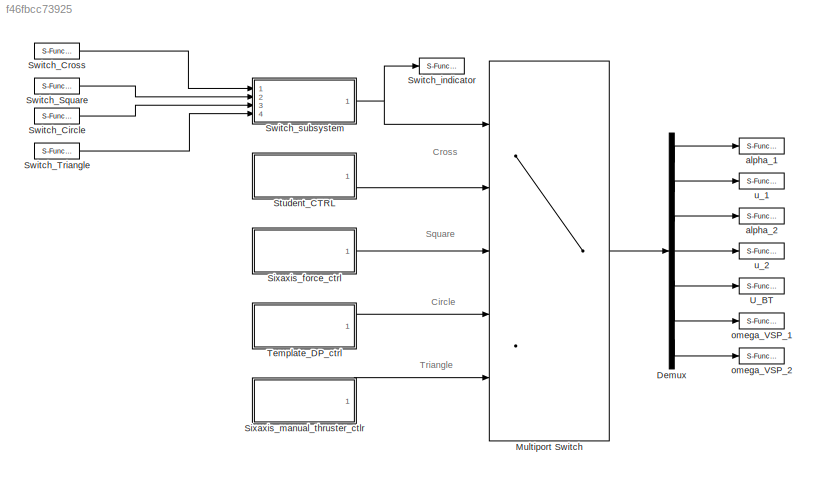
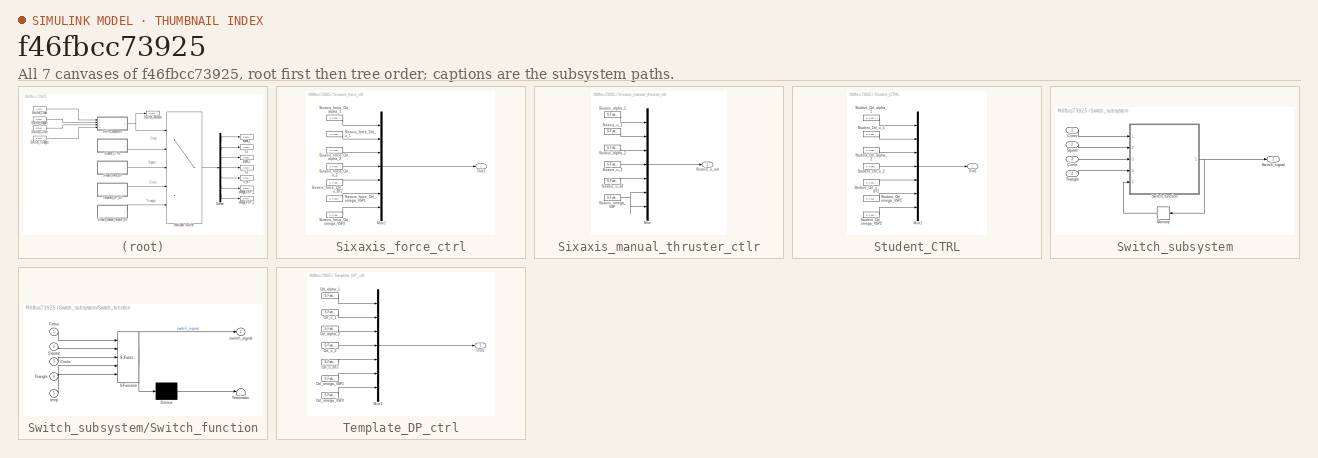
[diagram: thumbnail index - all 7 canvases of the model, root first then tree order]
MODEL slx_f46fbcc73925
KIND model
BLOCK [Demux] Demux
  DisplayOption = bar
  Outputs = 7
  Ports = [1, 7]
BLOCK [MultiPortSwitch] Multiport Switch
  InputSameDT = off
  Inputs = 4
  Ports = [5, 1]
  SaturateOnIntegerOverflow = off
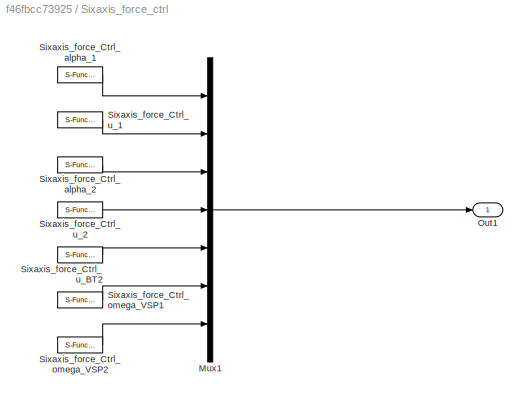
BLOCK [SubSystem] Sixaxis_force_ctrl
  Ports = [0, 1]
  RequestExecContextInheritance = off
BLOCK [Mux] Sixaxis_force_ctrl/Mux1
  DisplayOption = bar
  Inputs = 7
  Ports = [7, 1]
BLOCK [Outport] Sixaxis_force_ctrl/Out1
  IconDisplay = Port number
BLOCK [S-Function] Sixaxis_force_ctrl/Sixaxis_force_Ctrl_alpha_1
  CopyFcn = NIVeriStand_MDL_functions('', 'IO_copy');
  DeleteFcn = NIVeriStand_MDL_functions('', 'IO_delete');
  EnableBusSupport = off
  FunctionName = NIVeriStandIO
  MoveFcn = set_param(gcb, 'Mask', 'on');
  Parameters = width dtype portnum stime stype btype
  Ports = [0, 1]
  Priority = 1
BLOCK [S-Function] Sixaxis_force_ctrl/Sixaxis_force_Ctrl_alpha_2
  CopyFcn = NIVeriStand_MDL_functions('', 'IO_copy');
  DeleteFcn = NIVeriStand_MDL_functions('', 'IO_delete');
  EnableBusSupport = off
  FunctionName = NIVeriStandIO
  MoveFcn = set_param(gcb, 'Mask', 'on');
  Parameters = width dtype portnum stime stype btype
  Ports = [0, 1]
  Priority = 2
BLOCK [S-Function] Sixaxis_force_ctrl/Sixaxis_force_Ctrl_omega_VSP1
  CopyFcn = NIVeriStand_MDL_functions('', 'IO_copy');
  DeleteFcn = NIVeriStand_MDL_functions('', 'IO_delete');
  EnableBusSupport = off
  FunctionName = NIVeriStandIO
  MoveFcn = set_param(gcb, 'Mask', 'on');
  Parameters = width dtype portnum stime stype btype
  Ports = [0, 1]
  Priority = 3
BLOCK [S-Function] Sixaxis_force_ctrl/Sixaxis_force_Ctrl_omega_VSP2
  CopyFcn = NIVeriStand_MDL_functions('', 'IO_copy');
  DeleteFcn = NIVeriStand_MDL_functions('', 'IO_delete');
  EnableBusSupport = off
  FunctionName = NIVeriStandIO
  MoveFcn = set_param(gcb, 'Mask', 'on');
  Parameters = width dtype portnum stime stype btype
  Ports = [0, 1]
  Priority = 4
BLOCK [S-Function] Sixaxis_force_ctrl/Sixaxis_force_Ctrl_u_1
  CopyFcn = NIVeriStand_MDL_functions('', 'IO_copy');
  DeleteFcn = NIVeriStand_MDL_functions('', 'IO_delete');
  EnableBusSupport = off
  FunctionName = NIVeriStandIO
  MoveFcn = set_param(gcb, 'Mask', 'on');
  Parameters = width dtype portnum stime stype btype
  Ports = [0, 1]
  Priority = 5
BLOCK [S-Function] Sixaxis_force_ctrl/Sixaxis_force_Ctrl_u_2
  CopyFcn = NIVeriStand_MDL_functions('', 'IO_copy');
  DeleteFcn = NIVeriStand_MDL_functions('', 'IO_delete');
  EnableBusSupport = off
  FunctionName = NIVeriStandIO
  MoveFcn = set_param(gcb, 'Mask', 'on');
  Parameters = width dtype portnum stime stype btype
  Ports = [0, 1]
  Priority = 6
BLOCK [S-Function] Sixaxis_force_ctrl/Sixaxis_force_Ctrl_u_BT2
  CopyFcn = NIVeriStand_MDL_functions('', 'IO_copy');
  DeleteFcn = NIVeriStand_MDL_functions('', 'IO_delete');
  EnableBusSupport = off
  FunctionName = NIVeriStandIO
  MoveFcn = set_param(gcb, 'Mask', 'on');
  Parameters = width dtype portnum stime stype btype
  Ports = [0, 1]
  Priority = 7
BLOCK [SubSystem] Sixaxis_manual_thruster_ctlr
  Ports = [0, 1]
  RequestExecContextInheritance = off
BLOCK [Mux] Sixaxis_manual_thruster_ctlr/Mux
  DisplayOption = bar
  Inputs = 7
  Ports = [7, 1]
BLOCK [S-Function] Sixaxis_manual_thruster_ctlr/Sixaxis_alpha_1
  CopyFcn = NIVeriStand_MDL_functions('', 'IO_copy');
  DeleteFcn = NIVeriStand_MDL_functions('', 'IO_delete');
  EnableBusSupport = off
  FunctionName = NIVeriStandIO
  MoveFcn = set_param(gcb, 'Mask', 'on');
  Parameters = width dtype portnum stime stype btype
  Ports = [0, 1]
  Priority = 1
BLOCK [S-Function] Sixaxis_manual_thruster_ctlr/Sixaxis_alpha_2
  CopyFcn = NIVeriStand_MDL_functions('', 'IO_copy');
  DeleteFcn = NIVeriStand_MDL_functions('', 'IO_delete');
  EnableBusSupport = off
  FunctionName = NIVeriStandIO
  MoveFcn = set_param(gcb, 'Mask', 'on');
  Parameters = width dtype portnum stime stype btype
  Ports = [0, 1]
  Priority = 2
BLOCK [S-Function] Sixaxis_manual_thruster_ctlr/Sixaxis_omega_VSP
  CopyFcn = NIVeriStand_MDL_functions('', 'IO_copy');
  DeleteFcn = NIVeriStand_MDL_functions('', 'IO_delete');
  EnableBusSupport = off
  FunctionName = NIVeriStandIO
  MoveFcn = set_param(gcb, 'Mask', 'on');
  Parameters = width dtype portnum stime stype btype
  Ports = [0, 1]
  Priority = 3
BLOCK [S-Function] Sixaxis_manual_thruster_ctlr/Sixaxis_u_1
  CopyFcn = NIVeriStand_MDL_functions('', 'IO_copy');
  DeleteFcn = NIVeriStand_MDL_functions('', 'IO_delete');
  EnableBusSupport = off
  FunctionName = NIVeriStandIO
  MoveFcn = set_param(gcb, 'Mask', 'on');
  Parameters = width dtype portnum stime stype btype
  Ports = [0, 1]
  Priority = 4
BLOCK [S-Function] Sixaxis_manual_thruster_ctlr/Sixaxis_u_2
  CopyFcn = NIVeriStand_MDL_functions('', 'IO_copy');
  DeleteFcn = NIVeriStand_MDL_functions('', 'IO_delete');
  EnableBusSupport = off
  FunctionName = NIVeriStandIO
  MoveFcn = set_param(gcb, 'Mask', 'on');
  Parameters = width dtype portnum stime stype btype
  Ports = [0, 1]
  Priority = 5
BLOCK [S-Function] Sixaxis_manual_thruster_ctlr/Sixaxis_u_BT
  CopyFcn = NIVeriStand_MDL_functions('', 'IO_copy');
  DeleteFcn = NIVeriStand_MDL_functions('', 'IO_delete');
  EnableBusSupport = off
  FunctionName = NIVeriStandIO
  MoveFcn = set_param(gcb, 'Mask', 'on');
  Parameters = width dtype portnum stime stype btype
  Ports = [0, 1]
  Priority = 6
BLOCK [Outport] Sixaxis_manual_thruster_ctlr/Sixaxis_u_out
  IconDisplay = Port number
BLOCK [SubSystem] Student_CTRL
  Ports = [0, 1]
  RequestExecContextInheritance = off
BLOCK [Mux] Student_CTRL/Mux1
  DisplayOption = bar
  Inputs = 7
  Ports = [7, 1]
BLOCK [Outport] Student_CTRL/Out1
  IconDisplay = Port number
BLOCK [S-Function] Student_CTRL/Student_Ctrl_alpha_1
  CopyFcn = NIVeriStand_MDL_functions('', 'IO_copy');
  DeleteFcn = NIVeriStand_MDL_functions('', 'IO_delete');
  EnableBusSupport = off
  FunctionName = NIVeriStandIO
  MoveFcn = set_param(gcb, 'Mask', 'on');
  Parameters = width dtype portnum stime stype btype
  Ports = [0, 1]
  Priority = 1
BLOCK [S-Function] Student_CTRL/Student_Ctrl_alpha_2
  CopyFcn = NIVeriStand_MDL_functions('', 'IO_copy');
  DeleteFcn = NIVeriStand_MDL_functions('', 'IO_delete');
  EnableBusSupport = off
  FunctionName = NIVeriStandIO
  MoveFcn = set_param(gcb, 'Mask', 'on');
  Parameters = width dtype portnum stime stype btype
  Ports = [0, 1]
  Priority = 2
BLOCK [S-Function] Student_CTRL/Student_Ctrl_omega_VSP1
  CopyFcn = NIVeriStand_MDL_functions('', 'IO_copy');
  DeleteFcn = NIVeriStand_MDL_functions('', 'IO_delete');
  EnableBusSupport = off
  FunctionName = NIVeriStandIO
  MoveFcn = set_param(gcb, 'Mask', 'on');
  Parameters = width dtype portnum stime stype btype
  Ports = [0, 1]
  Priority = 3
BLOCK [S-Function] Student_CTRL/Student_Ctrl_omega_VSP2
  CopyFcn = NIVeriStand_MDL_functions('', 'IO_copy');
  DeleteFcn = NIVeriStand_MDL_functions('', 'IO_delete');
  EnableBusSupport = off
  FunctionName = NIVeriStandIO
  MoveFcn = set_param(gcb, 'Mask', 'on');
  Parameters = width dtype portnum stime stype btype
  Ports = [0, 1]
  Priority = 4
BLOCK [S-Function] Student_CTRL/Student_Ctrl_u_1
  CopyFcn = NIVeriStand_MDL_functions('', 'IO_copy');
  DeleteFcn = NIVeriStand_MDL_functions('', 'IO_delete');
  EnableBusSupport = off
  FunctionName = NIVeriStandIO
  MoveFcn = set_param(gcb, 'Mask', 'on');
  Parameters = width dtype portnum stime stype btype
  Ports = [0, 1]
  Priority = 5
BLOCK [S-Function] Student_CTRL/Student_Ctrl_u_2
  CopyFcn = NIVeriStand_MDL_functions('', 'IO_copy');
  DeleteFcn = NIVeriStand_MDL_functions('', 'IO_delete');
  EnableBusSupport = off
  FunctionName = NIVeriStandIO
  MoveFcn = set_param(gcb, 'Mask', 'on');
  Parameters = width dtype portnum stime stype btype
  Ports = [0, 1]
  Priority = 6
BLOCK [S-Function] Student_CTRL/Student_Ctrl_u_BT2
  CopyFcn = NIVeriStand_MDL_functions('', 'IO_copy');
  DeleteFcn = NIVeriStand_MDL_functions('', 'IO_delete');
  EnableBusSupport = off
  FunctionName = NIVeriStandIO
  MoveFcn = set_param(gcb, 'Mask', 'on');
  Parameters = width dtype portnum stime stype btype
  Ports = [0, 1]
  Priority = 7
BLOCK [S-Function] Switch_Circle
  CopyFcn = NIVeriStand_MDL_functions('', 'IO_copy');
  DeleteFcn = NIVeriStand_MDL_functions('', 'IO_delete');
  EnableBusSupport = off
  FunctionName = NIVeriStandIO
  MoveFcn = set_param(gcb, 'Mask', 'on');
  Parameters = width dtype portnum stime stype btype
  Ports = [0, 1]
  Priority = 3
BLOCK [S-Function] Switch_Cross
  CopyFcn = NIVeriStand_MDL_functions('', 'IO_copy');
  DeleteFcn = NIVeriStand_MDL_functions('', 'IO_delete');
  EnableBusSupport = off
  FunctionName = NIVeriStandIO
  MoveFcn = set_param(gcb, 'Mask', 'on');
  Parameters = width dtype portnum stime stype btype
  Ports = [0, 1]
  Priority = 1
BLOCK [S-Function] Switch_Square
  CopyFcn = NIVeriStand_MDL_functions('', 'IO_copy');
  DeleteFcn = NIVeriStand_MDL_functions('', 'IO_delete');
  EnableBusSupport = off
  FunctionName = NIVeriStandIO
  MoveFcn = set_param(gcb, 'Mask', 'on');
  Parameters = width dtype portnum stime stype btype
  Ports = [0, 1]
  Priority = 2
BLOCK [S-Function] Switch_Triangle
  CopyFcn = NIVeriStand_MDL_functions('', 'IO_copy');
  DeleteFcn = NIVeriStand_MDL_functions('', 'IO_delete');
  EnableBusSupport = off
  FunctionName = NIVeriStandIO
  MoveFcn = set_param(gcb, 'Mask', 'on');
  Parameters = width dtype portnum stime stype btype
  Ports = [0, 1]
  Priority = 4
BLOCK [S-Function] Switch_indicator
  CopyFcn = NIVeriStand_MDL_functions('', 'IO_copy');
  DeleteFcn = NIVeriStand_MDL_functions('', 'IO_delete');
  EnableBusSupport = off
  FunctionName = NIVeriStandIO
  MoveFcn = set_param(gcb, 'Mask', 'on');
  Parameters = width dtype portnum stime stype btype
  Ports = [1]
  Priority = 8
BLOCK [SubSystem] Switch_subsystem
  Ports = [4, 1]
  RequestExecContextInheritance = off
BLOCK [Inport] Switch_subsystem/Circle
  IconDisplay = Port number
  Port = 3
BLOCK [Inport] Switch_subsystem/Cross
  IconDisplay = Port number
BLOCK [Memory] Switch_subsystem/Memory
  X0 = 4
BLOCK [Inport] Switch_subsystem/Square
  IconDisplay = Port number
  Port = 2
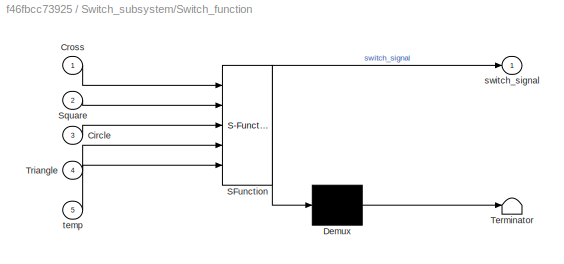
BLOCK [SubSystem] Switch_subsystem/Switch_function
  ErrorFcn = Stateflow.Translate.translate
  PermitHierarchicalResolution = ExplicitOnly
  Ports = [5, 1]
  RequestExecContextInheritance = off
  SFBlockType = MATLAB Function
  TreatAsAtomicUnit = on
BLOCK [Demux] Switch_subsystem/Switch_function/ Demux 
  Outputs = 1
  Ports = [1, 1]
BLOCK [S-Function] Switch_subsystem/Switch_function/ SFunction 
  EnableBusSupport = on
  FunctionName = sf_sfun
  PortCounts = [5 2]
  Ports = [5, 2]
  Tag = Stateflow S-Function button_switch 2
BLOCK [Terminator] Switch_subsystem/Switch_function/ Terminator 
BLOCK [Inport] Switch_subsystem/Switch_function/Circle
  IconDisplay = Port number
  Port = 3
BLOCK [Inport] Switch_subsystem/Switch_function/Cross
  IconDisplay = Port number
BLOCK [Inport] Switch_subsystem/Switch_function/Square
  IconDisplay = Port number
  Port = 2
BLOCK [Inport] Switch_subsystem/Switch_function/Triangle
  IconDisplay = Port number
  Port = 4
BLOCK [Outport] Switch_subsystem/Switch_function/switch_signal
  IconDisplay = Port number
BLOCK [Inport] Switch_subsystem/Switch_function/temp
  IconDisplay = Port number
  Port = 5
BLOCK [Outport] Switch_subsystem/Switch_signal
  IconDisplay = Port number
BLOCK [Inport] Switch_subsystem/Triangle
  IconDisplay = Port number
  Port = 4
BLOCK [SubSystem] Template_DP_ctrl
  Ports = [0, 1]
  RequestExecContextInheritance = off
BLOCK [S-Function] Template_DP_ctrl/Ctrl_alpha_1
  CopyFcn = NIVeriStand_MDL_functions('', 'IO_copy');
  DeleteFcn = NIVeriStand_MDL_functions('', 'IO_delete');
  EnableBusSupport = off
  FunctionName = NIVeriStandIO
  MoveFcn = set_param(gcb, 'Mask', 'on');
  Parameters = width dtype portnum stime stype btype
  Ports = [0, 1]
  Priority = 1
BLOCK [S-Function] Template_DP_ctrl/Ctrl_alpha_2
  CopyFcn = NIVeriStand_MDL_functions('', 'IO_copy');
  DeleteFcn = NIVeriStand_MDL_functions('', 'IO_delete');
  EnableBusSupport = off
  FunctionName = NIVeriStandIO
  MoveFcn = set_param(gcb, 'Mask', 'on');
  Parameters = width dtype portnum stime stype btype
  Ports = [0, 1]
  Priority = 2
BLOCK [S-Function] Template_DP_ctrl/Ctrl_omega_VSP1
  CopyFcn = NIVeriStand_MDL_functions('', 'IO_copy');
  DeleteFcn = NIVeriStand_MDL_functions('', 'IO_delete');
  EnableBusSupport = off
  FunctionName = NIVeriStandIO
  MoveFcn = set_param(gcb, 'Mask', 'on');
  Parameters = width dtype portnum stime stype btype
  Ports = [0, 1]
  Priority = 3
BLOCK [S-Function] Template_DP_ctrl/Ctrl_omega_VSP2
  CopyFcn = NIVeriStand_MDL_functions('', 'IO_copy');
  DeleteFcn = NIVeriStand_MDL_functions('', 'IO_delete');
  EnableBusSupport = off
  FunctionName = NIVeriStandIO
  MoveFcn = set_param(gcb, 'Mask', 'on');
  Parameters = width dtype portnum stime stype btype
  Ports = [0, 1]
  Priority = 4
BLOCK [S-Function] Template_DP_ctrl/Ctrl_u_1
  CopyFcn = NIVeriStand_MDL_functions('', 'IO_copy');
  DeleteFcn = NIVeriStand_MDL_functions('', 'IO_delete');
  EnableBusSupport = off
  FunctionName = NIVeriStandIO
  MoveFcn = set_param(gcb, 'Mask', 'on');
  Parameters = width dtype portnum stime stype btype
  Ports = [0, 1]
  Priority = 5
BLOCK [S-Function] Template_DP_ctrl/Ctrl_u_2
  CopyFcn = NIVeriStand_MDL_functions('', 'IO_copy');
  DeleteFcn = NIVeriStand_MDL_functions('', 'IO_delete');
  EnableBusSupport = off
  FunctionName = NIVeriStandIO
  MoveFcn = set_param(gcb, 'Mask', 'on');
  Parameters = width dtype portnum stime stype btype
  Ports = [0, 1]
  Priority = 6
BLOCK [S-Function] Template_DP_ctrl/Ctrl_u_BT2
  CopyFcn = NIVeriStand_MDL_functions('', 'IO_copy');
  DeleteFcn = NIVeriStand_MDL_functions('', 'IO_delete');
  EnableBusSupport = off
  FunctionName = NIVeriStandIO
  MoveFcn = set_param(gcb, 'Mask', 'on');
  Parameters = width dtype portnum stime stype btype
  Ports = [0, 1]
  Priority = 7
BLOCK [Mux] Template_DP_ctrl/Mux1
  DisplayOption = bar
  Inputs = 7
  Ports = [7, 1]
BLOCK [Outport] Template_DP_ctrl/Out1
  IconDisplay = Port number
BLOCK [S-Function] U_BT
  CopyFcn = NIVeriStand_MDL_functions('', 'IO_copy');
  DeleteFcn = NIVeriStand_MDL_functions('', 'IO_delete');
  EnableBusSupport = off
  FunctionName = NIVeriStandIO
  MoveFcn = set_param(gcb, 'Mask', 'on');
  Parameters = width dtype portnum stime stype btype
  Ports = [1]
  Priority = 1
BLOCK [S-Function] alpha_1
  CopyFcn = NIVeriStand_MDL_functions('', 'IO_copy');
  DeleteFcn = NIVeriStand_MDL_functions('', 'IO_delete');
  EnableBusSupport = off
  FunctionName = NIVeriStandIO
  MoveFcn = set_param(gcb, 'Mask', 'on');
  Parameters = width dtype portnum stime stype btype
  Ports = [1]
  Priority = 2
BLOCK [S-Function] alpha_2
  CopyFcn = NIVeriStand_MDL_functions('', 'IO_copy');
  DeleteFcn = NIVeriStand_MDL_functions('', 'IO_delete');
  EnableBusSupport = off
  FunctionName = NIVeriStandIO
  MoveFcn = set_param(gcb, 'Mask', 'on');
  Parameters = width dtype portnum stime stype btype
  Ports = [1]
  Priority = 4
BLOCK [S-Function] omega_VSP_1
  CopyFcn = NIVeriStand_MDL_functions('', 'IO_copy');
  DeleteFcn = NIVeriStand_MDL_functions('', 'IO_delete');
  EnableBusSupport = off
  FunctionName = NIVeriStandIO
  MoveFcn = set_param(gcb, 'Mask', 'on');
  Parameters = width dtype portnum stime stype btype
  Ports = [1]
  Priority = 6
BLOCK [S-Function] omega_VSP_2
  CopyFcn = NIVeriStand_MDL_functions('', 'IO_copy');
  DeleteFcn = NIVeriStand_MDL_functions('', 'IO_delete');
  EnableBusSupport = off
  FunctionName = NIVeriStandIO
  MoveFcn = set_param(gcb, 'Mask', 'on');
  Parameters = width dtype portnum stime stype btype
  Ports = [1]
  Priority = 7
BLOCK [S-Function] u_1
  CopyFcn = NIVeriStand_MDL_functions('', 'IO_copy');
  DeleteFcn = NIVeriStand_MDL_functions('', 'IO_delete');
  EnableBusSupport = off
  FunctionName = NIVeriStandIO
  MoveFcn = set_param(gcb, 'Mask', 'on');
  Parameters = width dtype portnum stime stype btype
  Ports = [1]
  Priority = 3
BLOCK [S-Function] u_2
  CopyFcn = NIVeriStand_MDL_functions('', 'IO_copy');
  DeleteFcn = NIVeriStand_MDL_functions('', 'IO_delete');
  EnableBusSupport = off
  FunctionName = NIVeriStandIO
  MoveFcn = set_param(gcb, 'Mask', 'on');
  Parameters = width dtype portnum stime stype btype
  Ports = [1]
  Priority = 5
ANNOTATION (root): Circle
ANNOTATION (root): Cross
ANNOTATION (root): Square
ANNOTATION (root): Triangle
LINE Demux:1 -> alpha_1:1
LINE Demux:2 -> u_1:1
LINE Demux:3 -> alpha_2:1
LINE Demux:4 -> u_2:1
LINE Demux:5 -> U_BT:1
LINE Demux:6 -> omega_VSP_1:1
LINE Demux:7 -> omega_VSP_2:1
LINE Multiport Switch:1 -> Demux:1
LINE Sixaxis_force_ctrl/Mux1:1 -> Sixaxis_force_ctrl/Out1:1
LINE Sixaxis_force_ctrl/Sixaxis_force_Ctrl_alpha_1:1 -> Sixaxis_force_ctrl/Mux1:1
LINE Sixaxis_force_ctrl/Sixaxis_force_Ctrl_alpha_2:1 -> Sixaxis_force_ctrl/Mux1:3
LINE Sixaxis_force_ctrl/Sixaxis_force_Ctrl_omega_VSP1:1 -> Sixaxis_force_ctrl/Mux1:6
LINE Sixaxis_force_ctrl/Sixaxis_force_Ctrl_omega_VSP2:1 -> Sixaxis_force_ctrl/Mux1:7
LINE Sixaxis_force_ctrl/Sixaxis_force_Ctrl_u_1:1 -> Sixaxis_force_ctrl/Mux1:2
LINE Sixaxis_force_ctrl/Sixaxis_force_Ctrl_u_2:1 -> Sixaxis_force_ctrl/Mux1:4
LINE Sixaxis_force_ctrl/Sixaxis_force_Ctrl_u_BT2:1 -> Sixaxis_force_ctrl/Mux1:5
LINE Sixaxis_force_ctrl:1 -> Multiport Switch:3
LINE Sixaxis_manual_thruster_ctlr/Mux:1 -> Sixaxis_manual_thruster_ctlr/Sixaxis_u_out:1
LINE Sixaxis_manual_thruster_ctlr/Sixaxis_alpha_1:1 -> Sixaxis_manual_thruster_ctlr/Mux:1
LINE Sixaxis_manual_thruster_ctlr/Sixaxis_alpha_2:1 -> Sixaxis_manual_thruster_ctlr/Mux:3
NET Sixaxis_manual_thruster_ctlr/Sixaxis_omega_VSP:1 -> Sixaxis_manual_thruster_ctlr/Mux:6, Sixaxis_manual_thruster_ctlr/Mux:7
LINE Sixaxis_manual_thruster_ctlr/Sixaxis_u_1:1 -> Sixaxis_manual_thruster_ctlr/Mux:2
LINE Sixaxis_manual_thruster_ctlr/Sixaxis_u_2:1 -> Sixaxis_manual_thruster_ctlr/Mux:4
LINE Sixaxis_manual_thruster_ctlr/Sixaxis_u_BT:1 -> Sixaxis_manual_thruster_ctlr/Mux:5
LINE Sixaxis_manual_thruster_ctlr:1 -> Multiport Switch:5
LINE Student_CTRL/Mux1:1 -> Student_CTRL/Out1:1
LINE Student_CTRL/Student_Ctrl_alpha_1:1 -> Student_CTRL/Mux1:1
LINE Student_CTRL/Student_Ctrl_alpha_2:1 -> Student_CTRL/Mux1:3
LINE Student_CTRL/Student_Ctrl_omega_VSP1:1 -> Student_CTRL/Mux1:6
LINE Student_CTRL/Student_Ctrl_omega_VSP2:1 -> Student_CTRL/Mux1:7
LINE Student_CTRL/Student_Ctrl_u_1:1 -> Student_CTRL/Mux1:2
LINE Student_CTRL/Student_Ctrl_u_2:1 -> Student_CTRL/Mux1:4
LINE Student_CTRL/Student_Ctrl_u_BT2:1 -> Student_CTRL/Mux1:5
LINE Student_CTRL:1 -> Multiport Switch:2
LINE Switch_Circle:1 -> Switch_subsystem:3
LINE Switch_Cross:1 -> Switch_subsystem:1
LINE Switch_Square:1 -> Switch_subsystem:2
LINE Switch_Triangle:1 -> Switch_subsystem:4
LINE Switch_subsystem/Circle:1 -> Switch_subsystem/Switch_function:3
LINE Switch_subsystem/Cross:1 -> Switch_subsystem/Switch_function:1
LINE Switch_subsystem/Memory:1 -> Switch_subsystem/Switch_function:5
LINE Switch_subsystem/Square:1 -> Switch_subsystem/Switch_function:2
NET Switch_subsystem/Switch_function:1 -> Switch_subsystem/Memory:1, Switch_subsystem/Switch_signal:1
LINE Switch_subsystem/Triangle:1 -> Switch_subsystem/Switch_function:4
NET Switch_subsystem:1 -> Multiport Switch:1, Switch_indicator:1
LINE Template_DP_ctrl/Ctrl_alpha_1:1 -> Template_DP_ctrl/Mux1:1
LINE Template_DP_ctrl/Ctrl_alpha_2:1 -> Template_DP_ctrl/Mux1:3
LINE Template_DP_ctrl/Ctrl_omega_VSP1:1 -> Template_DP_ctrl/Mux1:6
LINE Template_DP_ctrl/Ctrl_omega_VSP2:1 -> Template_DP_ctrl/Mux1:7
LINE Template_DP_ctrl/Ctrl_u_1:1 -> Template_DP_ctrl/Mux1:2
LINE Template_DP_ctrl/Ctrl_u_2:1 -> Template_DP_ctrl/Mux1:4
LINE Template_DP_ctrl/Ctrl_u_BT2:1 -> Template_DP_ctrl/Mux1:5
LINE Template_DP_ctrl/Mux1:1 -> Template_DP_ctrl/Out1:1
LINE Template_DP_ctrl:1 -> Multiport Switch:4
note: NET lines group one-source signal fan-out (src -> all destinations, sorted); 1:1 wires keep LINE
